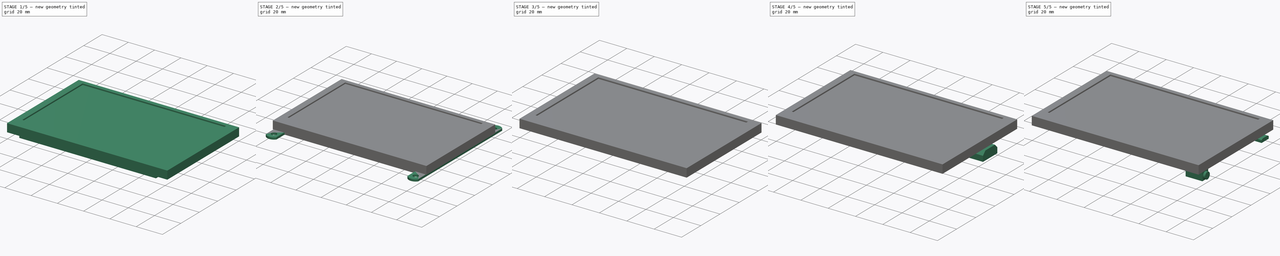
[diagram: build sequence overview — one tinted view per stage of 5, left to right]
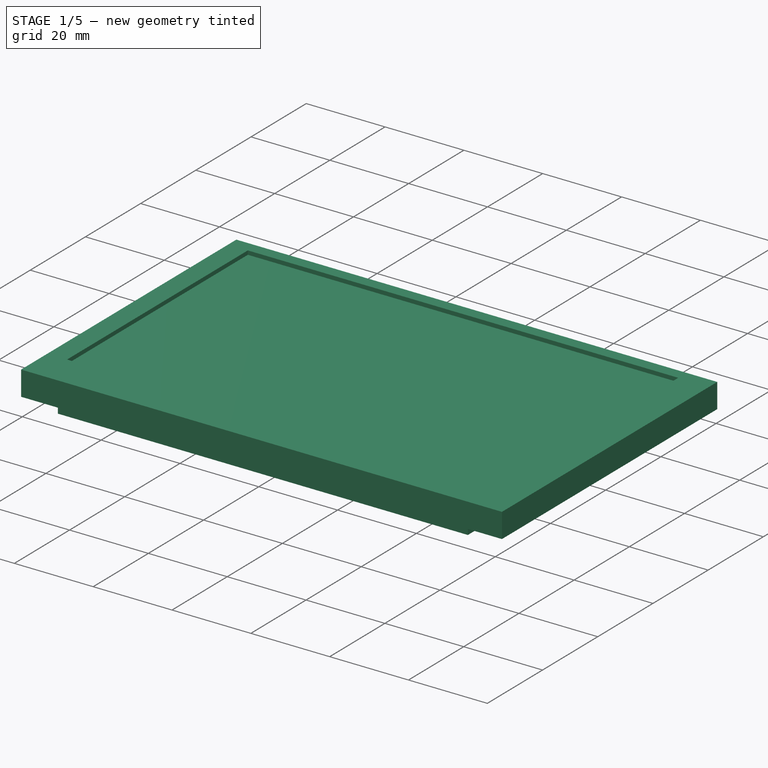
[diagram: stage 1 of 5 — iso view after this stage's code; geometry added in this stage tinted green]
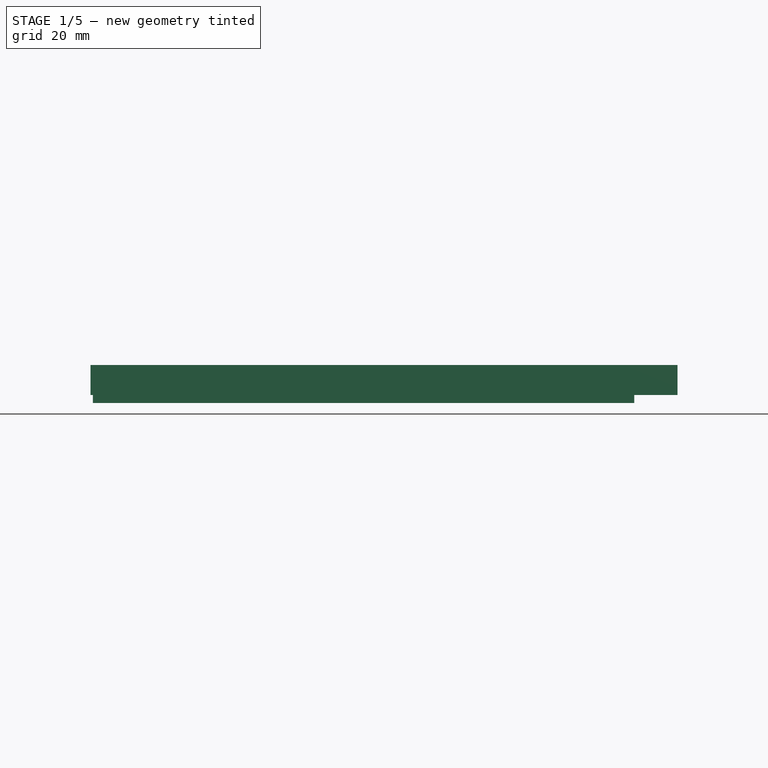
[diagram: stage 1 of 5 — front view after this stage's code; geometry added in this stage tinted green]
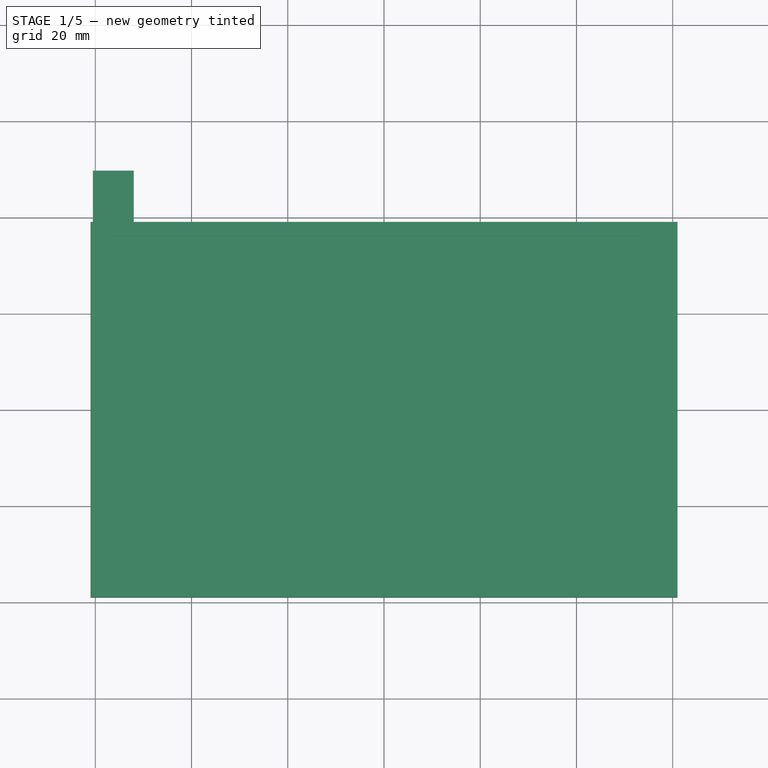
[diagram: stage 1 of 5 — top view after this stage's code; geometry added in this stage tinted green]
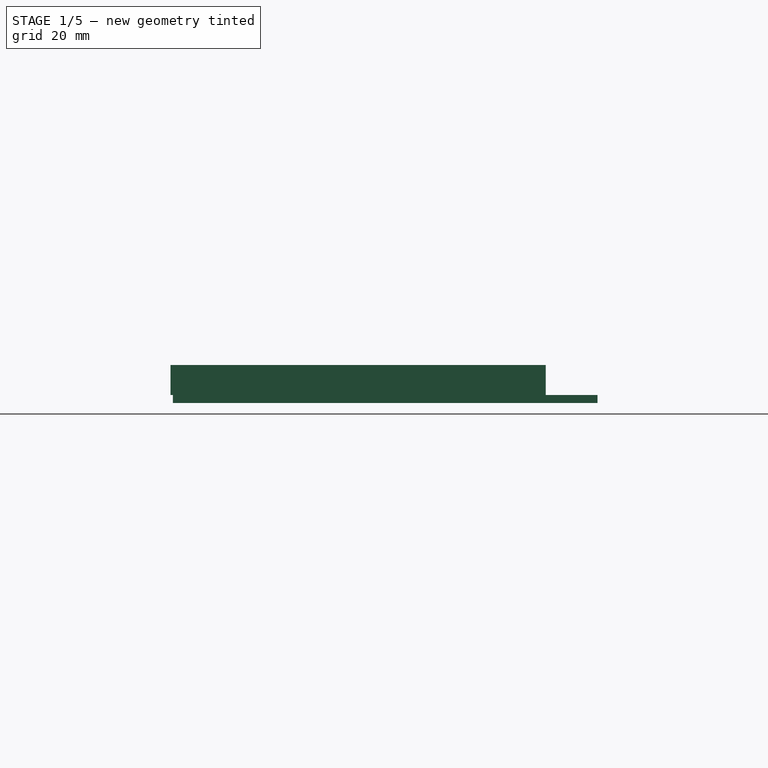
[diagram: stage 1 of 5 — right view after this stage's code; geometry added in this stage tinted green]
FCSTD DOCUMENT  (FreeCAD 0.20R29410 (Git))
Label: Pantalla_5in_HDMI
License: All rights reserved
LicenseURL: http://en.wikipedia.org/wiki/All_rights_reserved
objects: Sketcher::SketchObject×13, PartDesign::Body×11, PartDesign::Pad×9, PartDesign::Plane×5, PartDesign::FeatureBase×5, PartDesign::ShapeBinder×4, PartDesign::Pocket×3, PartDesign::Mirrored×2, App::DocumentObjectGroup×2, PartDesign::MultiTransform×1, PartDesign::Fillet×1
note: 67 computed .brp shape members not serialized (recipe doc carries the construction recipe); baked Part::Feature solids carry a one-line shape summary decoded from their .brp

FEATURE [Sketcher::SketchObject] Sketch
  FullyConstrained = true
  MapMode = 5
  Support = -> [XY_Plane]
  sketch-geometry (4):
    g0: LineSegment StartX=-52 StartY=38.5 StartZ=0 EndX=52 EndY=38.5 EndZ=0
    g1: LineSegment StartX=52 StartY=38.5 StartZ=0 EndX=52 EndY=-38.5 EndZ=0
    g2: LineSegment StartX=52 StartY=-38.5 StartZ=0 EndX=-52 EndY=-38.5 EndZ=0
    g3: LineSegment StartX=-52 StartY=-38.5 StartZ=0 EndX=-52 EndY=38.5 EndZ=0
  constraints (11):
    c: Coincident(g0,g1)
    c: Coincident(g1,g2)
    c: Coincident(g2,g3)
    c: Coincident(g3,g0)
    c: Horizontal(g0)
    c: Horizontal(g2)
    c: Vertical(g1)
    c: Vertical(g3)
    c: Symmetric(g1,g0,g-1)
    c: Distance(g1) = 77
    c: Distance(g0) = 104
FEATURE [PartDesign::Pad] Pad
  Direction = (1,1,1)
  Length = 1.66
  Length2 = 100
  Profile = -> Sketch
  Type = 0
FEATURE [Sketcher::SketchObject] Sketch001
  ExternalGeometry = -> [Pad]
  FullyConstrained = true
  MapMode = 5
  Support = -> [XY_Plane]
  sketch-geometry (4):
    g0: LineSegment StartX=-60.5 StartY=0 StartZ=0 EndX=-52 EndY=0 EndZ=0
    g1: LineSegment StartX=-52 StartY=0 StartZ=0 EndX=-52 EndY=49.76 EndZ=0
    g2: LineSegment StartX=-52 StartY=49.76 StartZ=0 EndX=-60.5 EndY=49.76 EndZ=0
    g3: LineSegment StartX=-60.5 StartY=49.76 StartZ=0 EndX=-60.5 EndY=0 EndZ=0
  constraints (14):
    c: Coincident(g0,g1)
    c: Coincident(g1,g2)
    c: Coincident(g2,g3)
    c: Coincident(g3,g0)
    c: Horizontal(g0)
    c: Horizontal(g2)
    c: Vertical(g1)
    c: Vertical(g3)
    c: PointOnObject(g0,g-1)
    c: Distance(g-3) = 77
    c: Distance(g2) = 8.5
    c: Distance(g-4) = 104
    c: Distance(g3) = 49.76
    c: Vertical(g-5,g1)
FEATURE [PartDesign::Pad] Pad001
  BaseFeature = -> Pad
  Direction = (1,1,1)
  Length = 1.66
  Length2 = 100
  Profile = -> Sketch001
  Type = 0
FEATURE [PartDesign::Body] Body  label="PCB"
  Group = -> [Sketch,Pad,Sketch001,Pad001,Sketch002,Pocket,Sketch003,Pocket001,MultiTransform,Mirrored,Mirrored001,Fillet]
  Origin = -> Origin
  Tip = -> Fillet
FEATURE [PartDesign::Plane] DatumPlane
  AttachmentOffset = pos=(0,0,1.66) rot=(0,0,1;0rad)
  Length = 141.51
  MapMode = 5
  Placement = pos=(0,0,1.66) rot=(0,0,1;0rad)
  ResizeMode = 0
  Support = -> [XY_Plane001]
  Width = 97.51
FEATURE [Sketcher::SketchObject] Sketch004
  FullyConstrained = true
  MapMode = 5
  Placement = pos=(0,0,1.66) rot=(0,0,1;0rad)
  Support = -> [DatumPlane]
  sketch-geometry (4):
    g0: LineSegment StartX=-61 StartY=39 StartZ=0 EndX=61 EndY=39 EndZ=0
    g1: LineSegment StartX=61 StartY=39 StartZ=0 EndX=61 EndY=-39 EndZ=0
    g2: LineSegment StartX=61 StartY=-39 StartZ=0 EndX=-61 EndY=-39 EndZ=0
    g3: LineSegment StartX=-61 StartY=-39 StartZ=0 EndX=-61 EndY=39 EndZ=0
  constraints (11):
    c: Coincident(g0,g1)
    c: Coincident(g1,g2)
    c: Coincident(g2,g3)
    c: Coincident(g3,g0)
    c: Horizontal(g0)
    c: Horizontal(g2)
    c: Vertical(g1)
    c: Vertical(g3)
    c: Symmetric(g1,g0,g-1)
    c: Distance(g1) = 78
    c: Distance(g0) = 122
FEATURE [PartDesign::Pad] Pad002
  Direction = (1,1,1)
  Length = 6.24
  Length2 = 100
  Placement = pos=(0,0,1.66) rot=(0,0,1;0rad)
  Profile = -> Sketch004
  Type = 0
FEATURE [PartDesign::Body] Body010  label="encendido"
  BaseFeature = -> Body009
  Group = -> [Clone004]
  Origin = -> Origin010
  Placement = pos=(0,-8,0) rot=(0,0,1;0rad)
  Tip = -> Clone004
FEATURE [App::DocumentObjectGroup] Group001  label="Botones"
  Group = -> [Body006,Body007,Body008,Body009,Body010]
FEATURE [Sketcher::SketchObject] Sketch013
  ExternalGeometry = -> [Pad002]
  FullyConstrained = true
  MapMode = 5
  Placement = pos=(0,0,7.9) rot=(0,0,1;0rad)
  Support = -> [Pad002]
  sketch-geometry (4):
    g0: LineSegment StartX=-56 StartY=36.02 StartZ=0 EndX=53.2 EndY=36.02 EndZ=0
    g1: LineSegment StartX=53.2 StartY=36.02 StartZ=0 EndX=53.2 EndY=-29.48 EndZ=0
    g2: LineSegment StartX=53.2 StartY=-29.48 StartZ=0 EndX=-56 EndY=-29.48 EndZ=0
    g3: LineSegment StartX=-56 StartY=-29.48 StartZ=0 EndX=-56 EndY=36.02 EndZ=0
  constraints (12):
    c: Coincident(g0,g1)
    c: Coincident(g1,g2)
    c: Coincident(g2,g3)
    c: Coincident(g3,g0)
    c: Horizontal(g0)
    c: Horizontal(g2)
    c: Vertical(g1)
    c: Vertical(g3)
    c: DistanceY(g0,g-4) = 2.98
    c: Distance(g0) = 109.2
    c: Distance(g3) = 65.5
    c: DistanceX(g-4,g2) = 5
FEATURE [PartDesign::Pocket] Pocket002
  BaseFeature = -> Pad002
  Direction = (0,0,-1)
  Length = 1
  Length2 = 100
  Placement = pos=(0,0,1.66) rot=(0,0,1;0rad)
  Profile = -> Sketch013
  Type = 0
FEATURE [PartDesign::Body] Body001  label="Pantalla"
  Group = -> [DatumPlane,Sketch004,Pad002,Sketch013,Pocket002]
  Origin = -> Origin001
  Tip = -> Pocket002
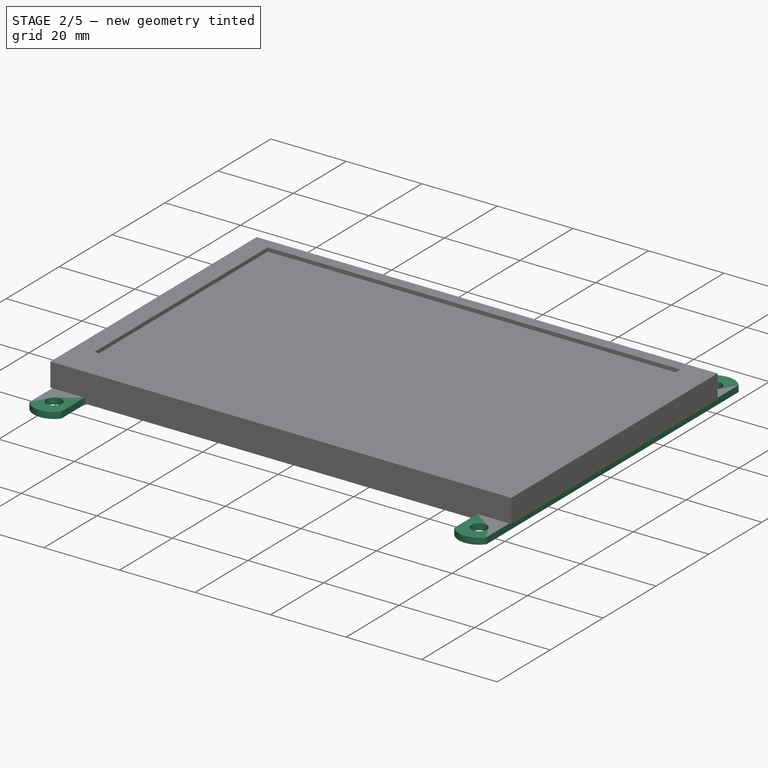
[diagram: stage 2 of 5 — iso view after this stage's code; geometry added in this stage tinted green]
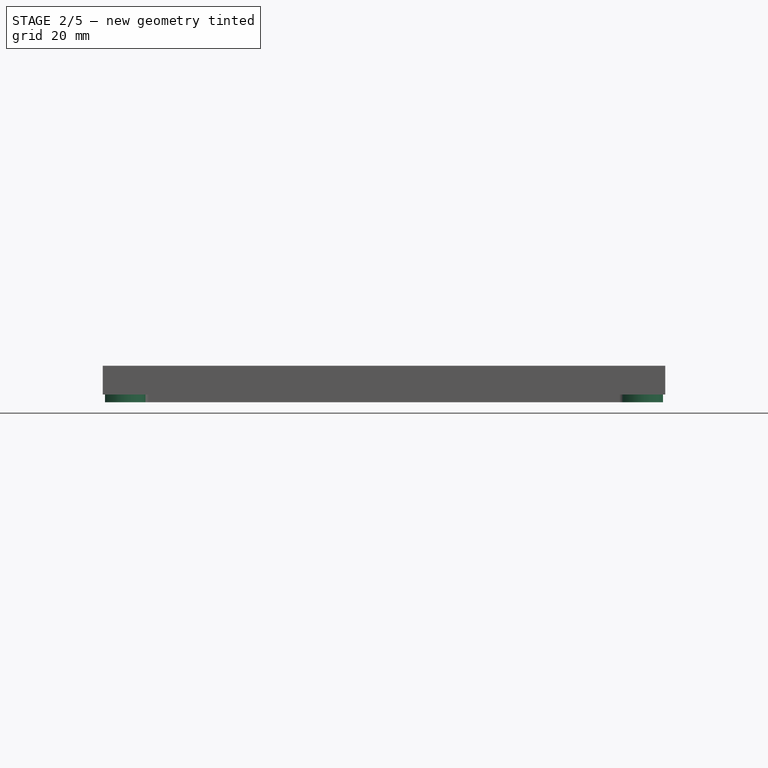
[diagram: stage 2 of 5 — front view after this stage's code; geometry added in this stage tinted green]
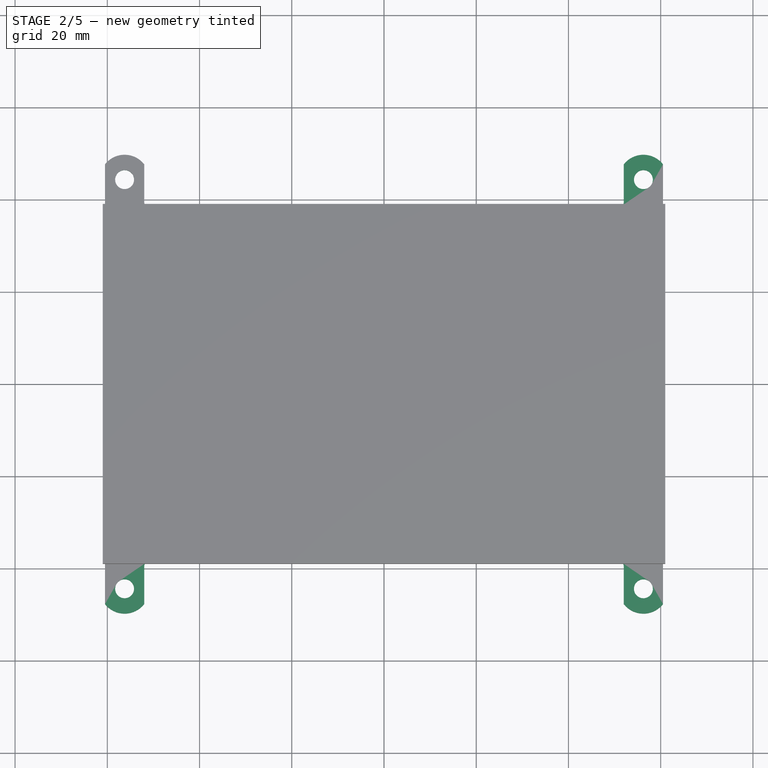
[diagram: stage 2 of 5 — top view after this stage's code; geometry added in this stage tinted green]
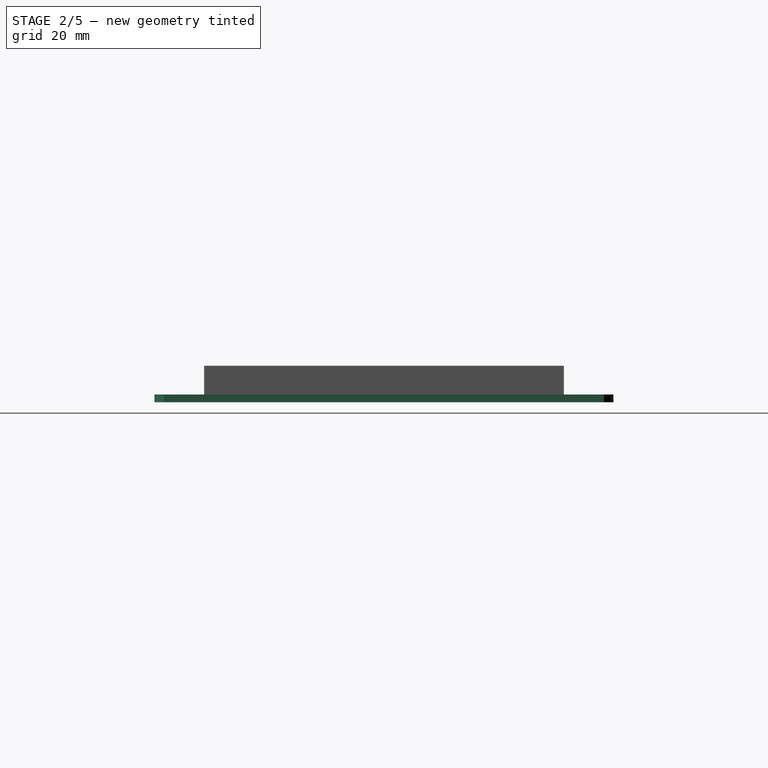
[diagram: stage 2 of 5 — right view after this stage's code; geometry added in this stage tinted green]
FEATURE [Sketcher::SketchObject] Sketch002
  ExternalGeometry = -> [Pad001]
  FullyConstrained = false
  MapMode = 5
  Support = -> [XY_Plane]
  sketch-geometry (2):
    g0: Circle CenterX=-56.25 CenterY=44.37 CenterZ=0 NormalX=0 NormalY=0 NormalZ=1 AngleXU=0 Radius=2.05
    g1: LineSegment StartX=-58.1387 StartY=46.42 StartZ=0 EndX=-54.0676 EndY=46.42 EndZ=0
  constraints (8):
    c: Radius(g0) = 2.05
    c: DistanceX(g0,g-3) = 4.25
    c: Distance(g-3) = 8.5
    c: Horizontal(g1)
    c: Tangent(g1,g0)
    c: DistanceY(g1,g-3) = 3.34
    c: DistanceY(g-1,g0) = 44.37
    c: DistanceX(g0,g-1) = 56.25
FEATURE [PartDesign::Pocket] Pocket
  BaseFeature = -> Pad001
  Direction = (0,0,-1)
  Length = 5
  Length2 = 100
  Profile = -> Sketch002
  Reversed = true
  Type = 2
FEATURE [Sketcher::SketchObject] Sketch003
  ExternalGeometry = -> [Pocket]
  FullyConstrained = true
  MapMode = 5
  Support = -> [XY_Plane]
  sketch-geometry (4):
    g0: ArcOfCircle CenterX=-56.25 CenterY=44.37 CenterZ=0 NormalX=0 NormalY=0 NormalZ=1 AngleXU=0 Radius=5.39 StartAngle=0.662435 EndAngle=2.47916
    g1: LineSegment StartX=-60.5 StartY=47.6851 StartZ=0 EndX=-60.5 EndY=51.1851 EndZ=0
    g2: LineSegment StartX=-60.5 StartY=51.1851 StartZ=0 EndX=-52 EndY=51.1851 EndZ=0
    g3: LineSegment StartX=-52 StartY=51.1851 StartZ=0 EndX=-52 EndY=47.6851 EndZ=0
  constraints (12):
    c: PointOnObject(g0,g-3)
    c: PointOnObject(g0,g-5)
    c: Tangent(g0,g-4)
    c: Coincident(g0,g-6)
    c: Coincident(g0,g1)
    c: Coincident(g1,g2)
    c: Horizontal(g2)
    c: Coincident(g2,g3)
    c: Coincident(g3,g0)
    c: Vertical(g3)
    c: Vertical(g1)
    c: Distance(g3) = 3.5
FEATURE [PartDesign::Pocket] Pocket001
  BaseFeature = -> Pocket
  Direction = (0,0,-1)
  Length = 5
  Length2 = 100
  Profile = -> Sketch003
  Reversed = true
  Type = 0
FEATURE [PartDesign::Mirrored] Mirrored
  MirrorPlane = -> Sketch001 [V_Axis]
FEATURE [PartDesign::Mirrored] Mirrored001
  MirrorPlane = -> XZ_Plane
FEATURE [PartDesign::MultiTransform] MultiTransform
  BaseFeature = -> Pocket001
  Originals = -> [Pad001,Pocket,Pocket001]
  Refine = true
  Transformations = -> [Mirrored,Mirrored001]
FEATURE [PartDesign::Fillet] Fillet
  Base = -> MultiTransform [Edge1,Edge2,Edge29,Edge28]
  BaseFeature = -> MultiTransform
  Radius = 1
  SupportTransform = false
  UseAllEdges = false
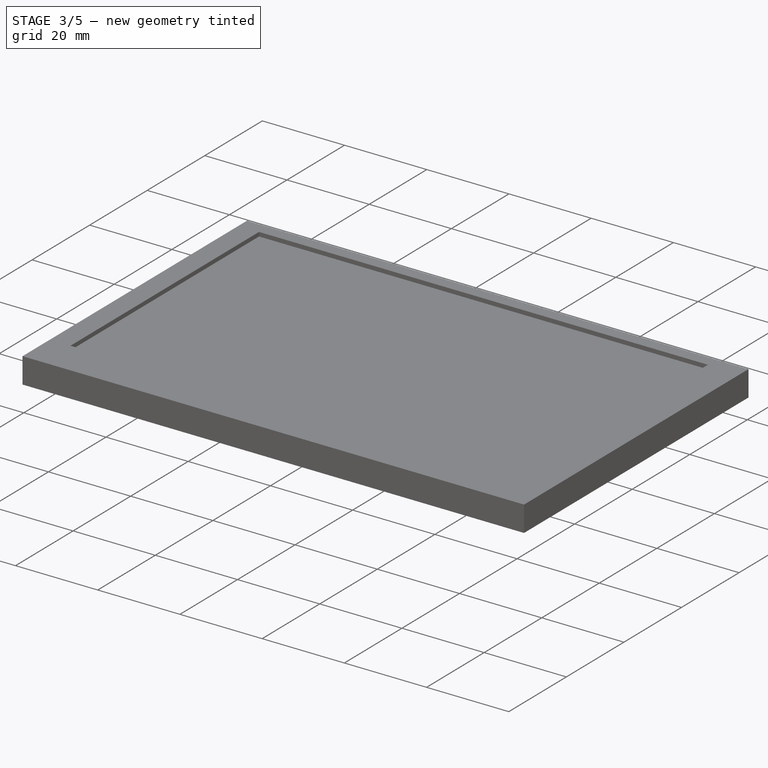
[diagram: stage 3 of 5 — iso view after this stage's code; geometry added in this stage tinted green]
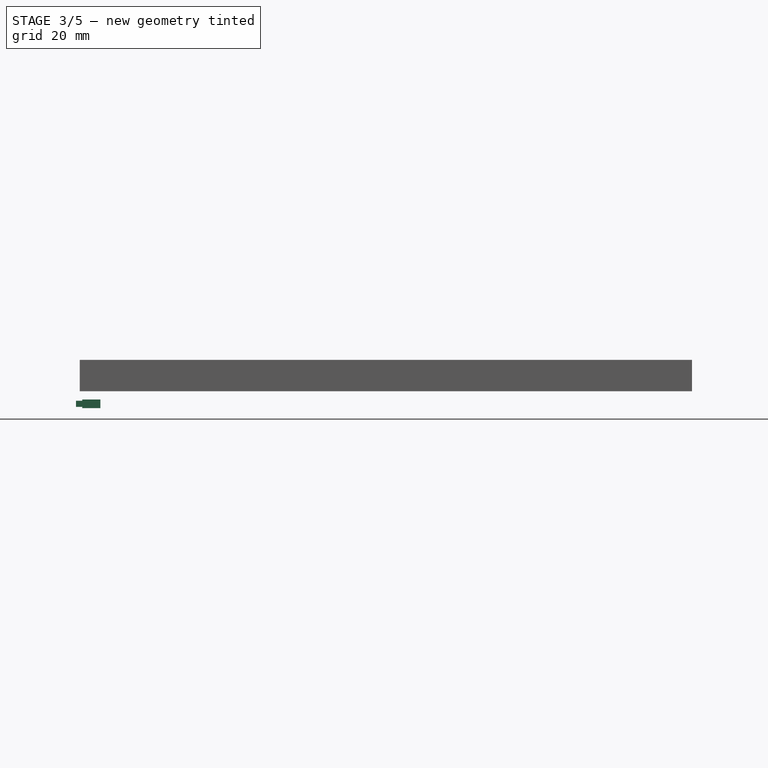
[diagram: stage 3 of 5 — front view after this stage's code; geometry added in this stage tinted green]
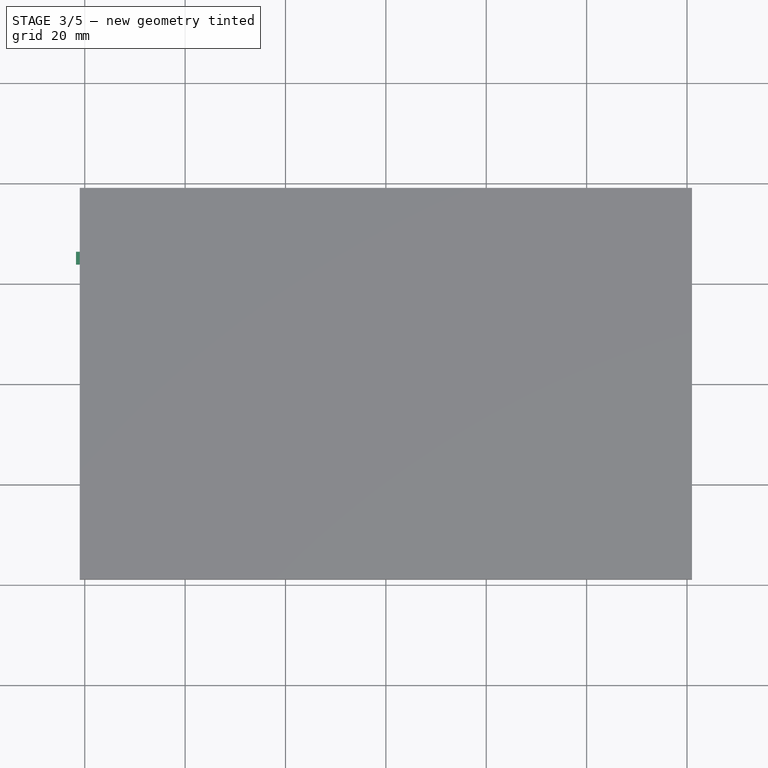
[diagram: stage 3 of 5 — top view after this stage's code; geometry added in this stage tinted green]
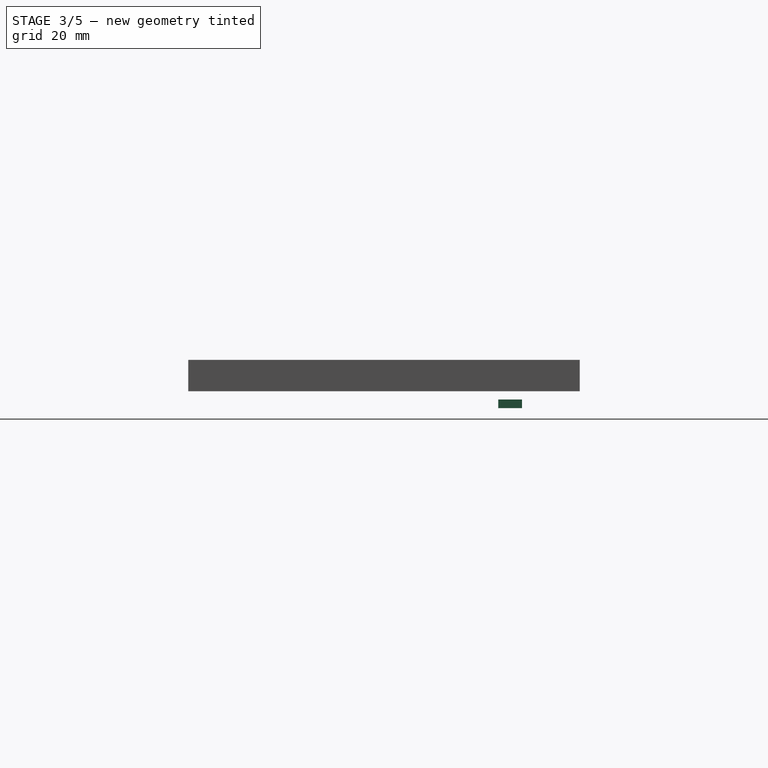
[diagram: stage 3 of 5 — right view after this stage's code; geometry added in this stage tinted green]
FEATURE [PartDesign::Body] Body005  label="Jack3.5"
  Group = -> [ShapeBinder002,DatumPlane003,Sketch009,Pad005,Sketch010,Pad006]
  Origin = -> Origin005
  Tip = -> Pad006
FEATURE [App::DocumentObjectGroup] Group  label="Puertos"
  Group = -> [Body003,Body002,Body004,Body005]
FEATURE [PartDesign::Plane] DatumPlane004
  AttachmentOffset = pos=(0,0,-60.5) rot=(0,0,1;0rad)
  Length = 60
  MapMode = 5
  Placement = pos=(-60.5,1.34e-14,-1.34e-14) rot=(0.57735,0.57735,0.57735;2.0944rad)
  ResizeMode = 0
  Support = -> [YZ_Plane006]
  Width = 60
FEATURE [PartDesign::ShapeBinder] ShapeBinder003
  Support = -> [Fillet]
  TraceSupport = false
FEATURE [Sketcher::SketchObject] Sketch011
  ExternalGeometry = -> [ShapeBinder003]
  FullyConstrained = true
  MapMode = 5
  Placement = pos=(-60.5,1.34e-14,-1.34e-14) rot=(0.57735,0.57735,0.57735;2.0944rad)
  Support = -> [DatumPlane004]
  sketch-geometry (4):
    g0: LineSegment StartX=27.51 StartY=0 StartZ=0 EndX=22.77 EndY=0 EndZ=0
    g1: LineSegment StartX=22.77 StartY=0 StartZ=0 EndX=22.77 EndY=-1.7 EndZ=0
    g2: LineSegment StartX=22.77 StartY=-1.7 StartZ=0 EndX=27.51 EndY=-1.7 EndZ=0
    g3: LineSegment StartX=27.51 StartY=-1.7 StartZ=0 EndX=27.51 EndY=0 EndZ=0
  constraints (12):
    c: Coincident(g0,g1)
    c: Coincident(g1,g2)
    c: Coincident(g2,g3)
    c: Coincident(g3,g0)
    c: Horizontal(g0)
    c: Horizontal(g2)
    c: Vertical(g1)
    c: Vertical(g3)
    c: PointOnObject(g0,g-1)
    c: Distance(g2) = 4.74
    c: Distance(g3) = 1.7
    c: DistanceX(g0,g-3) = 22.25
FEATURE [PartDesign::Pad] Pad007
  Direction = (1,-1e-16,1e-16)
  Length = 3.6
  Length2 = 100
  Placement = pos=(-60.5,1.34e-14,-1.34e-14) rot=(0.57735,0.57735,0.57735;2.0944rad)
  Profile = -> Sketch011
  Type = 0
FEATURE [Sketcher::SketchObject] Sketch012
  ExternalGeometry = -> [Pad007]
  FullyConstrained = true
  MapMode = 5
  Placement = pos=(-60.5,1.34e-14,-1.34e-14) rot=(-0.57735,-0.57735,0.57735;2.0944rad)
  Support = -> [Pad007]
  sketch-geometry (4):
    g0: LineSegment StartX=23.865 StartY=1.46 StartZ=0 EndX=26.415 EndY=1.46 EndZ=0
    g1: LineSegment StartX=26.415 StartY=1.46 StartZ=0 EndX=26.415 EndY=0.24 EndZ=0
    g2: LineSegment StartX=26.415 StartY=0.24 StartZ=0 EndX=23.865 EndY=0.24 EndZ=0
    g3: LineSegment StartX=23.865 StartY=0.24 StartZ=0 EndX=23.865 EndY=1.46 EndZ=0
  constraints (14):
    c: Coincident(g0,g1)
    c: Coincident(g1,g2)
    c: Coincident(g2,g3)
    c: Coincident(g3,g0)
    c: Horizontal(g0)
    c: Horizontal(g2)
    c: Vertical(g1)
    c: Vertical(g3)
    c: Distance(g-3) = 4.74
    c: Distance(g-4) = 1.7
    c: Distance(g0) = 2.55
    c: DistanceX(g-4,g2) = 1.095
    c: Distance(g1) = 1.22
    c: DistanceY(g0,g-4) = 0.24
FEATURE [PartDesign::Pad] Pad008
  BaseFeature = -> Pad007
  Direction = (-1,1e-16,-1e-16)
  Length = 1.25
  Length2 = 100
  Placement = pos=(-60.5,1.34e-14,-1.34e-14) rot=(0.57735,0.57735,0.57735;2.0944rad)
  Profile = -> Sketch012
  Type = 0
FEATURE [PartDesign::Body] Body006  label="menu"
  Group = -> [DatumPlane004,Sketch011,Pad007,Sketch012,Pad008,ShapeBinder003]
  Origin = -> Origin006
  Tip = -> Pad008
FEATURE [PartDesign::FeatureBase] Clone001
  BaseFeature = -> Pad008
  Placement = pos=(-60.5,1.3e-14,-1.3e-14) rot=(0.57735,0.57735,0.57735;2.0944rad)
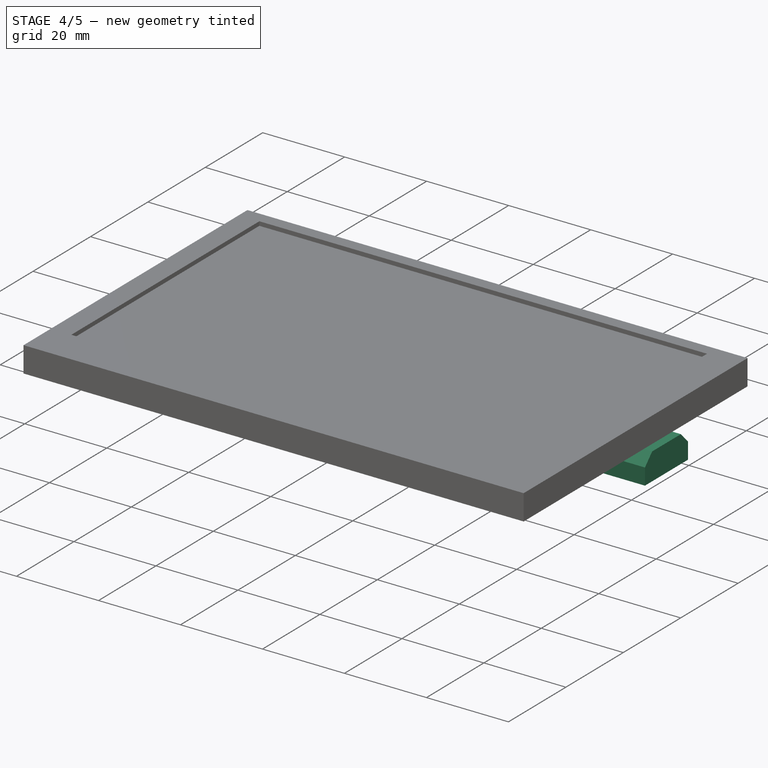
[diagram: stage 4 of 5 — iso view after this stage's code; geometry added in this stage tinted green]
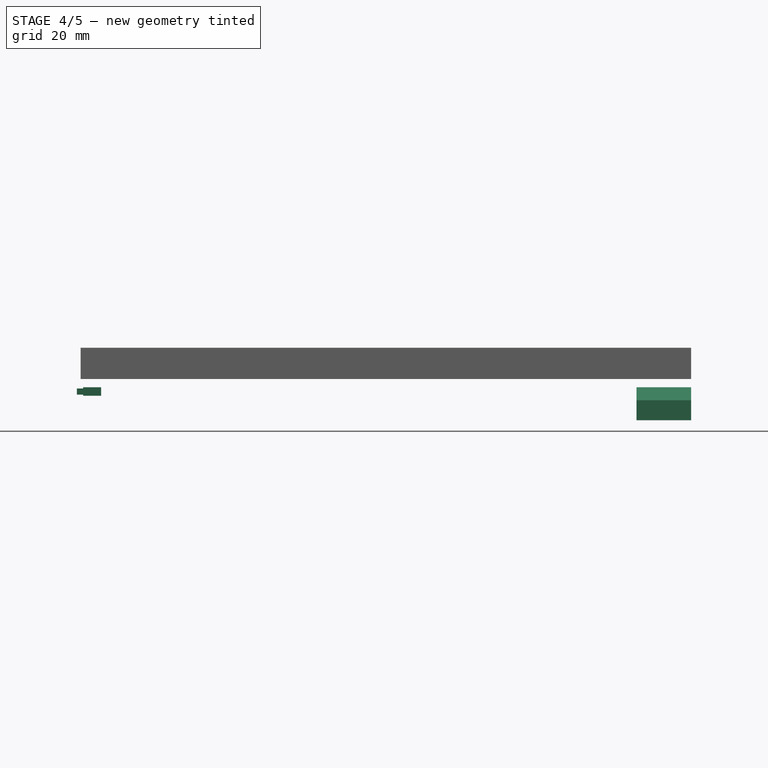
[diagram: stage 4 of 5 — front view after this stage's code; geometry added in this stage tinted green]
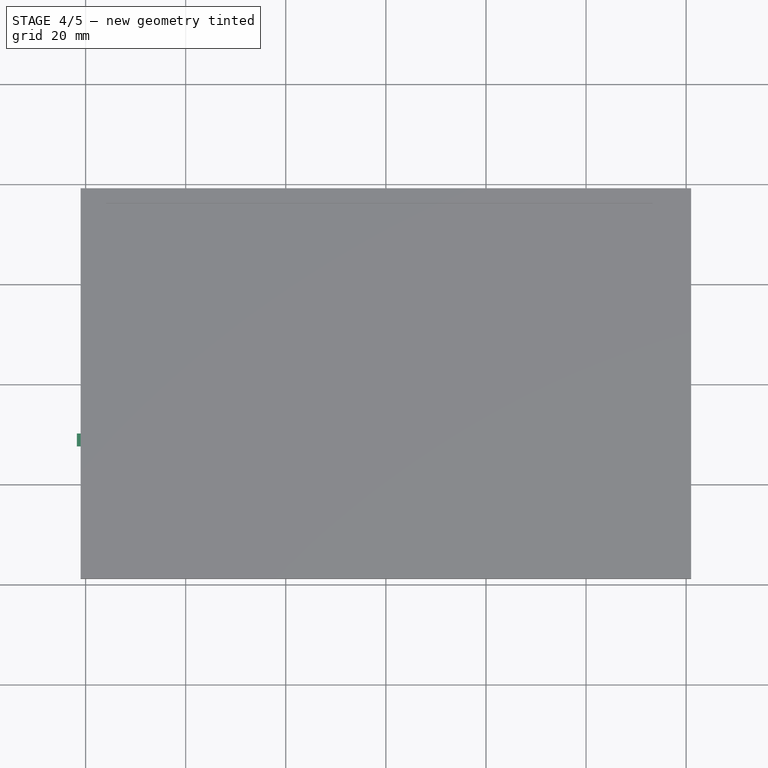
[diagram: stage 4 of 5 — top view after this stage's code; geometry added in this stage tinted green]
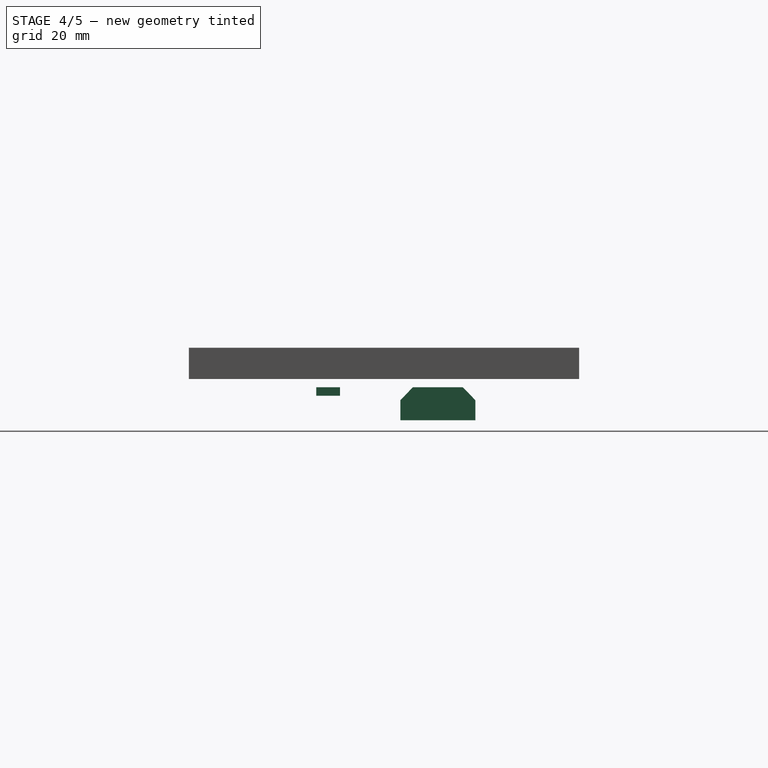
[diagram: stage 4 of 5 — right view after this stage's code; geometry added in this stage tinted green]
FEATURE [PartDesign::Body] Body003  label="MicroUSB001"
  BaseFeature = -> Pad003
  Group = -> [Clone]
  Origin = -> Origin003
  Placement = pos=(0,-41.26,0) rot=(0,0,1;0rad)
  Tip = -> Clone
FEATURE [PartDesign::Plane] DatumPlane002
  AttachmentOffset = pos=(0,0,61) rot=(0,0,1;0rad)
  Length = 60
  MapMode = 5
  Placement = pos=(61,-1.35e-14,1.35e-14) rot=(0.57735,0.57735,0.57735;2.0944rad)
  ResizeMode = 0
  Support = -> [YZ_Plane004]
  Width = 60
FEATURE [PartDesign::ShapeBinder] ShapeBinder001
  Support = -> [Fillet]
  TraceSupport = false
FEATURE [Sketcher::SketchObject] Sketch007
  ExternalGeometry = -> [ShapeBinder001]
  FullyConstrained = true
  MapMode = 5
  Placement = pos=(61,-1.35e-14,1.35e-14) rot=(0.57735,0.57735,0.57735;2.0944rad)
  Support = -> [DatumPlane002]
  sketch-geometry (6):
    g0: LineSegment StartX=15.76 StartY=0 StartZ=0 EndX=5.76 EndY=0 EndZ=0
    g1: LineSegment StartX=5.76 StartY=0 StartZ=0 EndX=3.26 EndY=-2.58 EndZ=0
    g2: LineSegment StartX=3.26 StartY=-2.58 StartZ=0 EndX=3.26 EndY=-6.58 EndZ=0
    g3: LineSegment StartX=3.26 StartY=-6.58 StartZ=0 EndX=18.26 EndY=-6.58 EndZ=0
    g4: LineSegment StartX=18.26 StartY=-6.58 StartZ=0 EndX=18.26 EndY=-2.58 EndZ=0
    g5: LineSegment StartX=18.26 StartY=-2.58 StartZ=0 EndX=15.76 EndY=0 EndZ=0
  constraints (18):
    c: PointOnObject(g0,g-1)
    c: PointOnObject(g0,g-1)
    c: Coincident(g0,g1)
    c: Coincident(g1,g2)
    c: Coincident(g2,g3)
    c: Horizontal(g3)
    c: Coincident(g3,g4)
    c: Vertical(g4)
    c: Coincident(g4,g5)
    c: Coincident(g5,g0)
    c: Vertical(g2)
    c: Equal(g1,g5)
    c: Equal(g4,g2)
    c: DistanceY(g2) = -6.58
    c: Distance(g3) = 15
    c: Distance(g2) = 4
    c: Distance(g0) = 10
    c: DistanceX(g1,g-3) = 46.5
FEATURE [PartDesign::Pad] Pad004
  Direction = (1,-1e-16,1e-16)
  Length = 10.92
  Length2 = 100
  Placement = pos=(61,-1.35e-14,1.35e-14) rot=(0.57735,0.57735,0.57735;2.0944rad)
  Profile = -> Sketch007
  Reversed = true
  Type = 0
FEATURE [PartDesign::Body] Body007  label="izq"
  BaseFeature = -> Pad008
  Group = -> [Clone001]
  Origin = -> Origin007
  Placement = pos=(0,-15,0) rot=(0,0,1;0rad)
  Tip = -> Clone001
FEATURE [PartDesign::FeatureBase] Clone002
  BaseFeature = -> Body007
  Placement = pos=(0,-15,0) rot=(0,0,1;0rad)
FEATURE [PartDesign::Body] Body008  label="der"
  BaseFeature = -> Body007
  Group = -> [Clone002]
  Origin = -> Origin008
  Placement = pos=(0,-8,0) rot=(0,0,1;0rad)
  Tip = -> Clone002
FEATURE [PartDesign::FeatureBase] Clone003
  BaseFeature = -> Body008
  Placement = pos=(0,-8,0) rot=(0,0,1;0rad)
FEATURE [PartDesign::Body] Body009  label="regresar"
  BaseFeature = -> Body008
  Group = -> [Clone003]
  Origin = -> Origin009
  Placement = pos=(0,-13.3,0) rot=(0,0,1;0rad)
  Tip = -> Clone003
FEATURE [PartDesign::FeatureBase] Clone004
  BaseFeature = -> Body009
  Placement = pos=(0,-13.3,0) rot=(0,0,1;0rad)
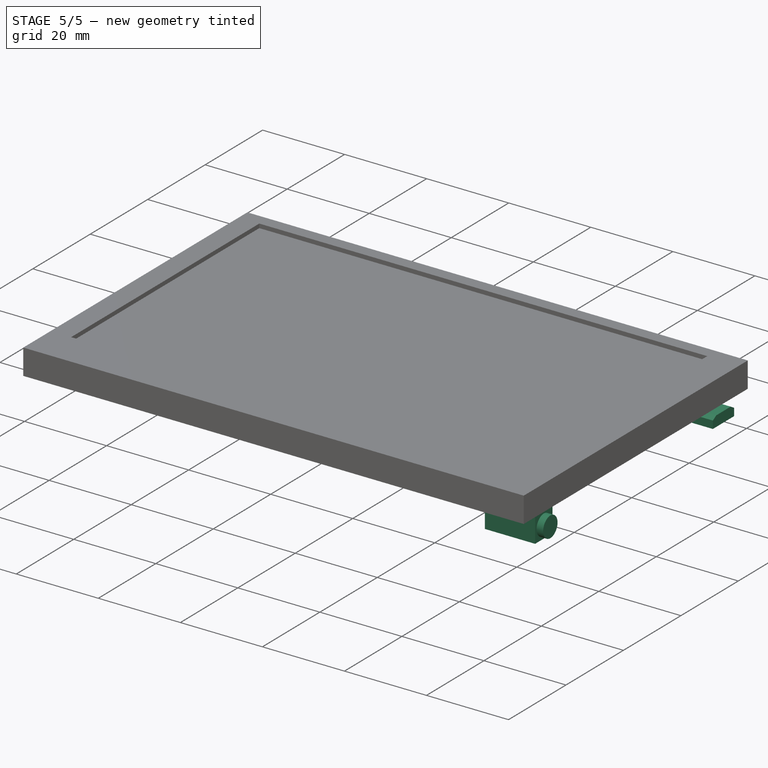
[diagram: stage 5 of 5 — iso view after this stage's code; geometry added in this stage tinted green]
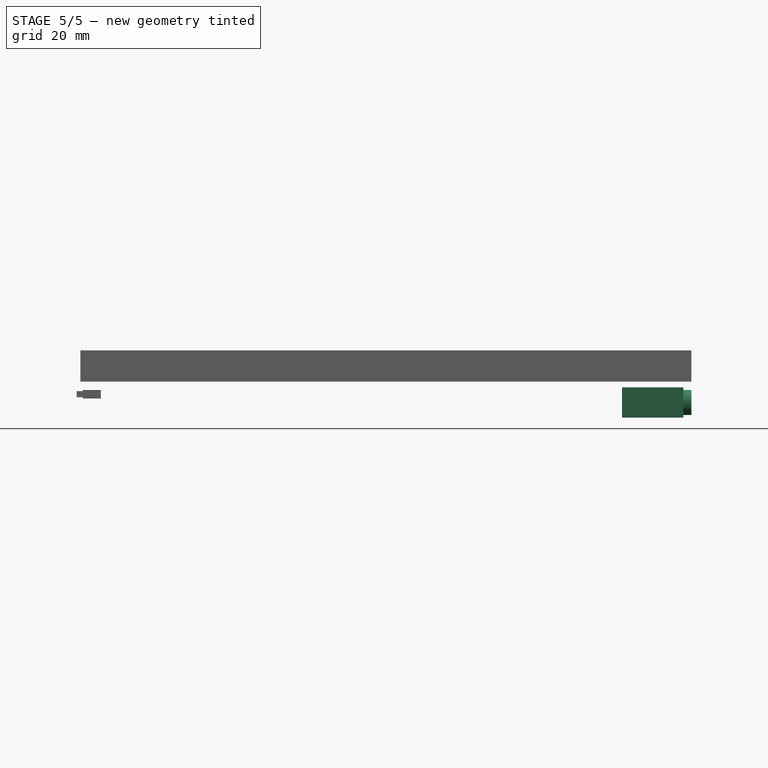
[diagram: stage 5 of 5 — front view after this stage's code; geometry added in this stage tinted green]
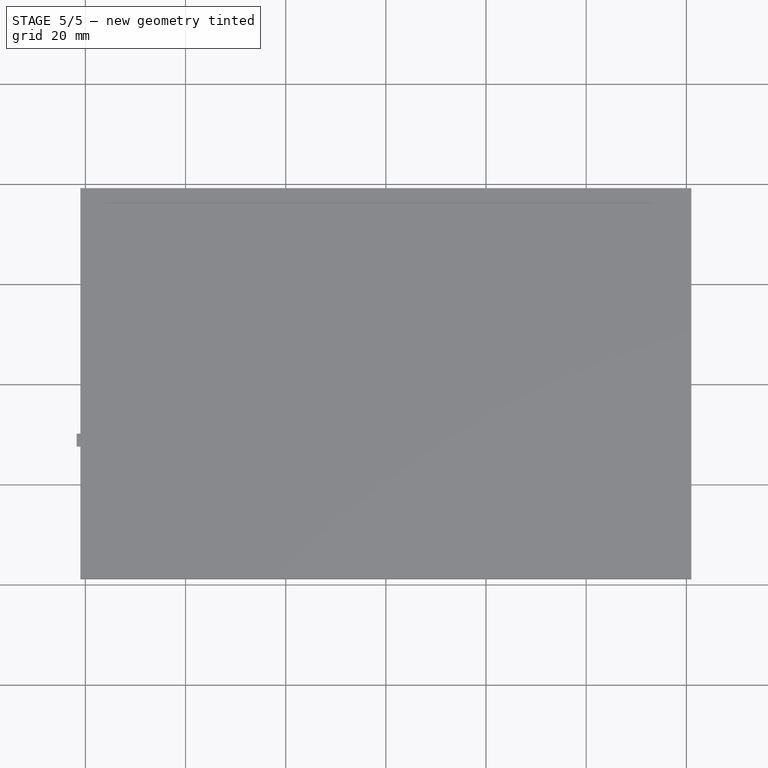
[diagram: stage 5 of 5 — top view after this stage's code; geometry added in this stage tinted green]
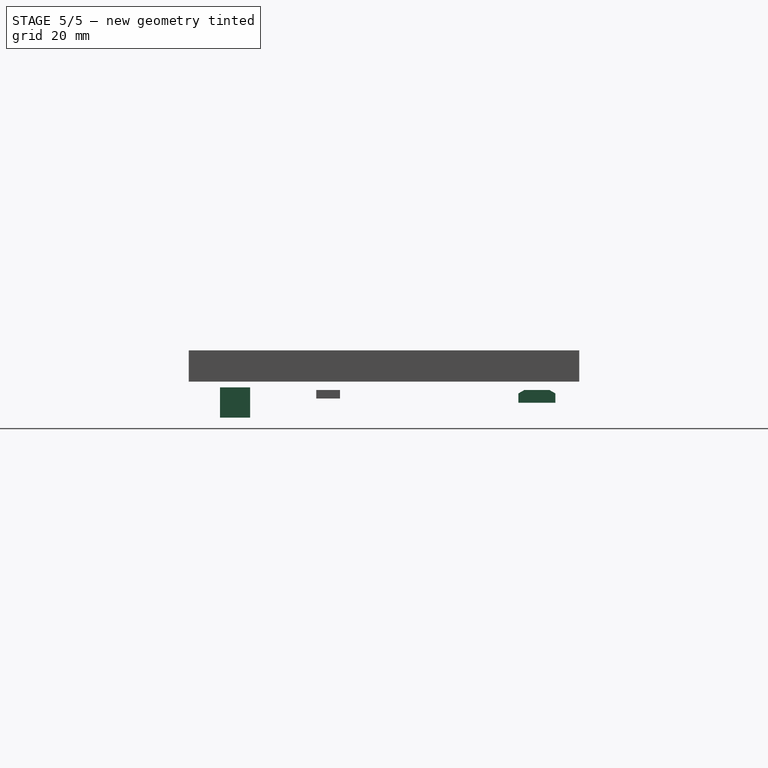
[diagram: stage 5 of 5 — right view after this stage's code; geometry added in this stage tinted green]
FEATURE [PartDesign::Plane] DatumPlane001
  AttachmentOffset = pos=(0,0,61) rot=(0,0,1;0rad)
  Length = 60
  MapMode = 5
  Placement = pos=(61,-1.35e-14,1.35e-14) rot=(0.57735,0.57735,0.57735;2.0944rad)
  ResizeMode = 0
  Support = -> [YZ_Plane002]
  Width = 60
FEATURE [PartDesign::ShapeBinder] ShapeBinder
  Support = -> [Fillet]
  TraceSupport = false
FEATURE [Sketcher::SketchObject] Sketch005
  ExternalGeometry = -> [ShapeBinder]
  FullyConstrained = true
  MapMode = 5
  Placement = pos=(61,-1.35e-14,1.35e-14) rot=(0.57735,0.57735,0.57735;2.0944rad)
  Support = -> [DatumPlane001]
  sketch-geometry (6):
    g0: LineSegment StartX=28.03 StartY=0 StartZ=0 EndX=26.83 EndY=-0.7 EndZ=0
    g1: LineSegment StartX=26.83 StartY=-0.7 StartZ=0 EndX=26.83 EndY=-2.55 EndZ=0
    g2: LineSegment StartX=26.83 StartY=-2.55 StartZ=0 EndX=34.23 EndY=-2.55 EndZ=0
    g3: LineSegment StartX=34.23 StartY=-2.55 StartZ=0 EndX=34.23 EndY=-0.7 EndZ=0
    g4: LineSegment StartX=34.23 StartY=-0.7 StartZ=0 EndX=33.03 EndY=2e-16 EndZ=0
    g5: LineSegment StartX=33.03 StartY=2e-16 StartZ=0 EndX=28.03 EndY=0 EndZ=0
  constraints (18):
    c: PointOnObject(g0,g-1)
    c: Coincident(g0,g1)
    c: Vertical(g1)
    c: Coincident(g1,g2)
    c: Horizontal(g2)
    c: Coincident(g2,g3)
    c: Vertical(g3)
    c: Coincident(g3,g4)
    c: PointOnObject(g4,g-1)
    c: Coincident(g4,g5)
    c: Coincident(g5,g0)
    c: Equal(g1,g3)
    c: Equal(g4,g0)
    c: Distance(g2) = 7.4
    c: DistanceY(g1,g0) = 2.55
    c: DistanceY(g0,g0) = 0.7
    c: Distance(g5) = 5
    c: DistanceX(g1,g-3) = 22.93
FEATURE [PartDesign::Pad] Pad003
  Direction = (1,-1e-16,1e-16)
  Length = 5.25
  Length2 = 100
  Placement = pos=(61,-1.35e-14,1.35e-14) rot=(0.57735,0.57735,0.57735;2.0944rad)
  Profile = -> Sketch005
  Reversed = true
  Type = 0
FEATURE [PartDesign::Body] Body002  label="MicroUSB"
  Group = -> [DatumPlane001,Sketch005,ShapeBinder,Pad003]
  Origin = -> Origin002
  Tip = -> Pad003
FEATURE [PartDesign::FeatureBase] Clone
  BaseFeature = -> Pad003
  Placement = pos=(61,-1.4e-14,1.4e-14) rot=(0.57735,0.57735,0.57735;2.0944rad)
FEATURE [Sketcher::SketchObject] Sketch008
  ExternalGeometry = -> [Pad004]
  FullyConstrained = false
  MapMode = 5
  Placement = pos=(61,-1.35e-14,1.35e-14) rot=(0.57735,0.57735,0.57735;2.0944rad)
  Support = -> [DatumPlane002]
  sketch-geometry (2):
    g0: Circle CenterX=-29.74 CenterY=-2.5 CenterZ=0 NormalX=0 NormalY=0 NormalZ=1 AngleXU=0 Radius=2.5
    g1: LineSegment StartX=-32.24 StartY=-0.660183 StartZ=0 EndX=-32.24 EndY=-3.72337 EndZ=0
  constraints (5):
    c: Radius(g0) = 2.5
    c: Tangent(g0,g-1)
    c: Vertical(g1)
    c: Tangent(g1,g0)
    c: DistanceX(g1,g-3) = 50.5
FEATURE [PartDesign::Body] Body004  label="HDMI"
  Group = -> [DatumPlane002,Sketch007,ShapeBinder001,Pad004,Sketch008]
  Origin = -> Origin004
  Tip = -> Pad004
FEATURE [PartDesign::ShapeBinder] ShapeBinder002
  Placement = pos=(61,-1.35e-14,1.35e-14) rot=(0.57735,0.57735,0.57735;2.0944rad)
  Support = -> [Sketch008]
  TraceSupport = false
FEATURE [PartDesign::Plane] DatumPlane003
  AttachmentOffset = pos=(0,0,61) rot=(0,0,1;0rad)
  Length = 60
  MapMode = 5
  Placement = pos=(61,-1.35e-14,1.35e-14) rot=(0.57735,0.57735,0.57735;2.0944rad)
  ResizeMode = 0
  Support = -> [YZ_Plane005]
  Width = 60
FEATURE [Sketcher::SketchObject] Sketch009
  ExternalGeometry = -> [ShapeBinder002]
  FullyConstrained = true
  MapMode = 5
  Placement = pos=(61,-1.35e-14,1.35e-14) rot=(0.57735,0.57735,0.57735;2.0944rad)
  Support = -> [DatumPlane003]
  sketch-geometry (1):
    g0: Circle CenterX=-29.74 CenterY=-2.5 CenterZ=0 NormalX=0 NormalY=0 NormalZ=1 AngleXU=0 Radius=2.5
  constraints (2):
    c: Coincident(g0,g-3)
    c: Tangent(g0,g-3)
FEATURE [PartDesign::Pad] Pad005
  Direction = (1,-1e-16,1e-16)
  Length = 1.6
  Length2 = 100
  Placement = pos=(61,-1.35e-14,1.35e-14) rot=(0.57735,0.57735,0.57735;2.0944rad)
  Profile = -> Sketch009
  Reversed = true
  Type = 0
FEATURE [Sketcher::SketchObject] Sketch010
  ExternalGeometry = -> [Pad005]
  FullyConstrained = true
  MapMode = 5
  Placement = pos=(59.4,-1.35e-14,1.37e-14) rot=(-0.57735,-0.57735,0.57735;2.0944rad)
  Support = -> [Pad005]
  sketch-geometry (4):
    g0: LineSegment StartX=-32.76 StartY=5.52 StartZ=0 EndX=-26.72 EndY=5.52 EndZ=0
    g1: LineSegment StartX=-26.72 StartY=5.52 StartZ=0 EndX=-26.72 EndY=-0.52 EndZ=0
    g2: LineSegment StartX=-26.72 StartY=-0.52 StartZ=0 EndX=-32.76 EndY=-0.52 EndZ=0
    g3: LineSegment StartX=-32.76 StartY=-0.52 StartZ=0 EndX=-32.76 EndY=5.52 EndZ=0
  constraints (11):
    c: Coincident(g0,g1)
    c: Coincident(g1,g2)
    c: Coincident(g2,g3)
    c: Coincident(g3,g0)
    c: Horizontal(g0)
    c: Horizontal(g2)
    c: Vertical(g1)
    c: Vertical(g3)
    c: Symmetric(g0,g2,g-3)
    c: Equal(g0,g3)
    c: Distance(g0) = 6.04
FEATURE [PartDesign::Pad] Pad006
  BaseFeature = -> Pad005
  Direction = (-1,1e-16,-1e-16)
  Length = 12.24
  Length2 = 100
  Placement = pos=(61,-1.35e-14,1.35e-14) rot=(0.57735,0.57735,0.57735;2.0944rad)
  Profile = -> Sketch010
  Type = 0
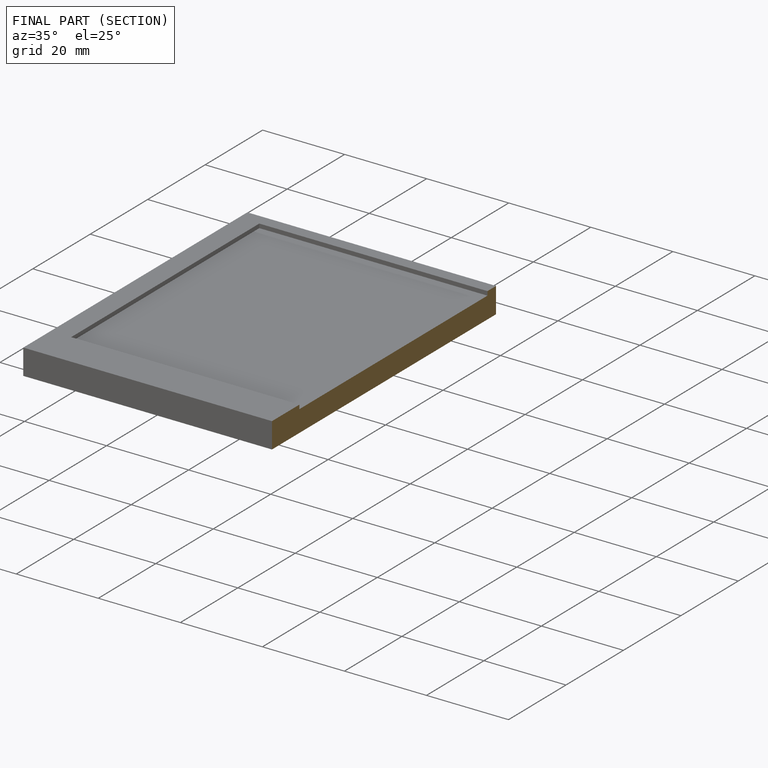
[diagram: finished part — half-section view (interior)]
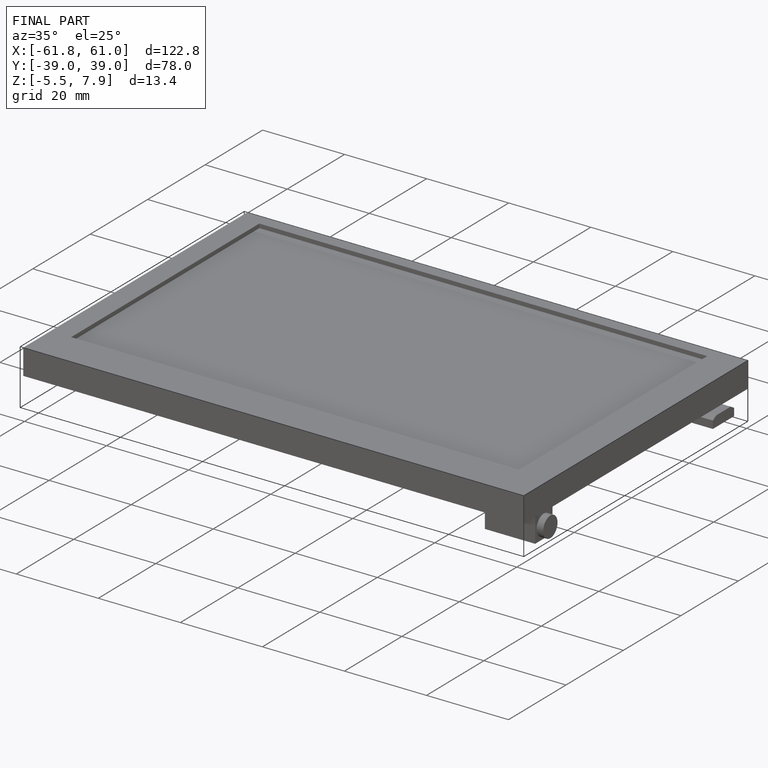
[diagram: finished part — iso view with bounding-box wireframe]
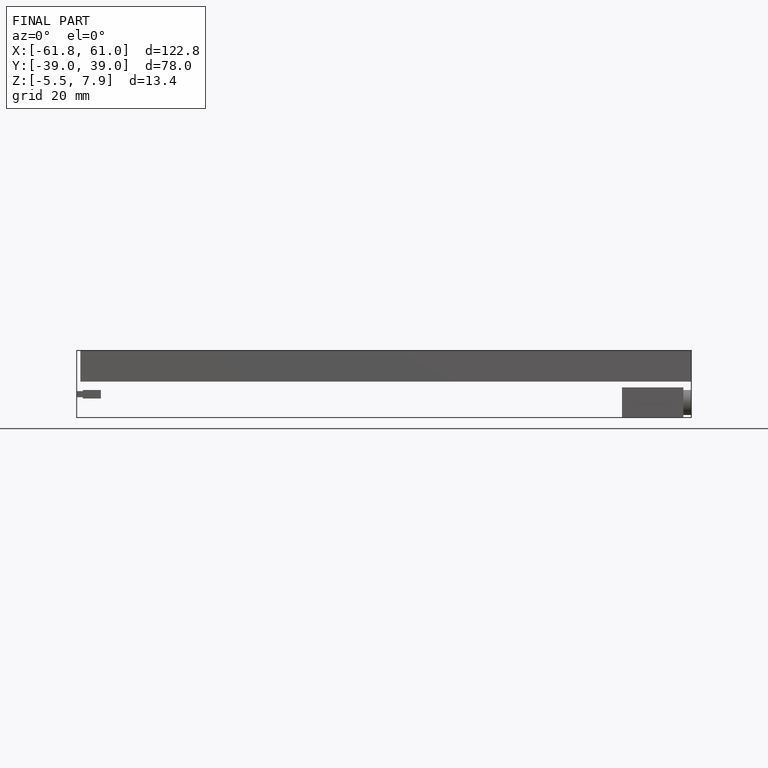
[diagram: finished part — front view with bounding-box wireframe]
